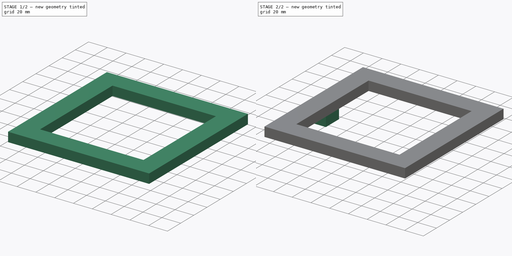
[diagram: build sequence overview — one tinted view per stage of 2, left to right]
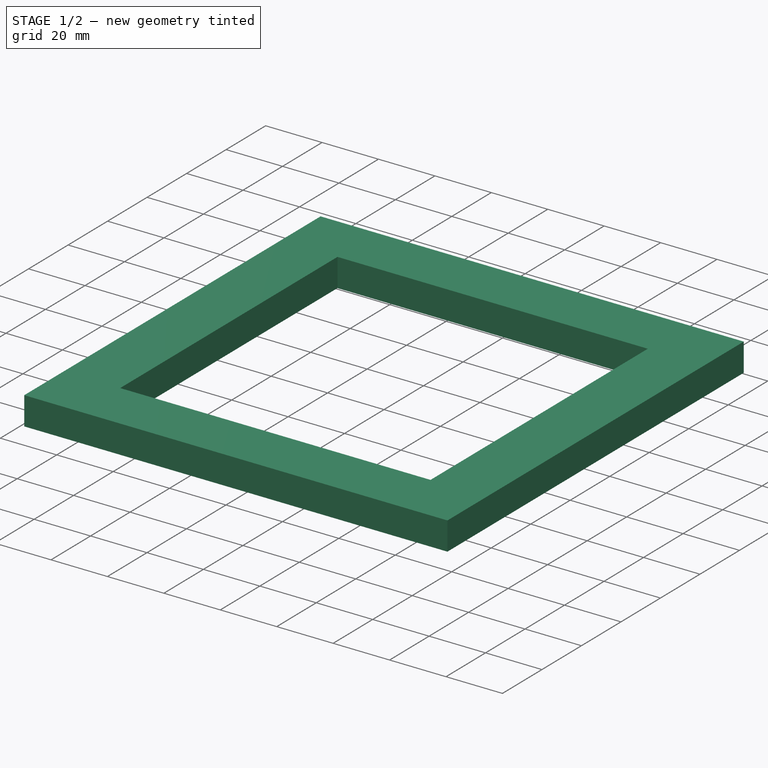
[diagram: stage 1 of 2 — iso view after this stage's code; geometry added in this stage tinted green]
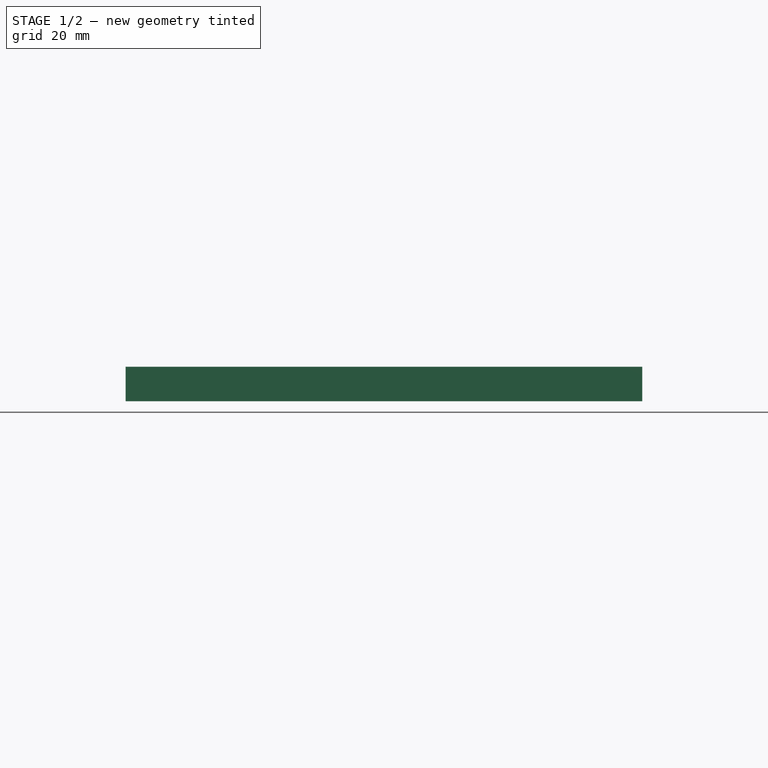
[diagram: stage 1 of 2 — front view after this stage's code; geometry added in this stage tinted green]
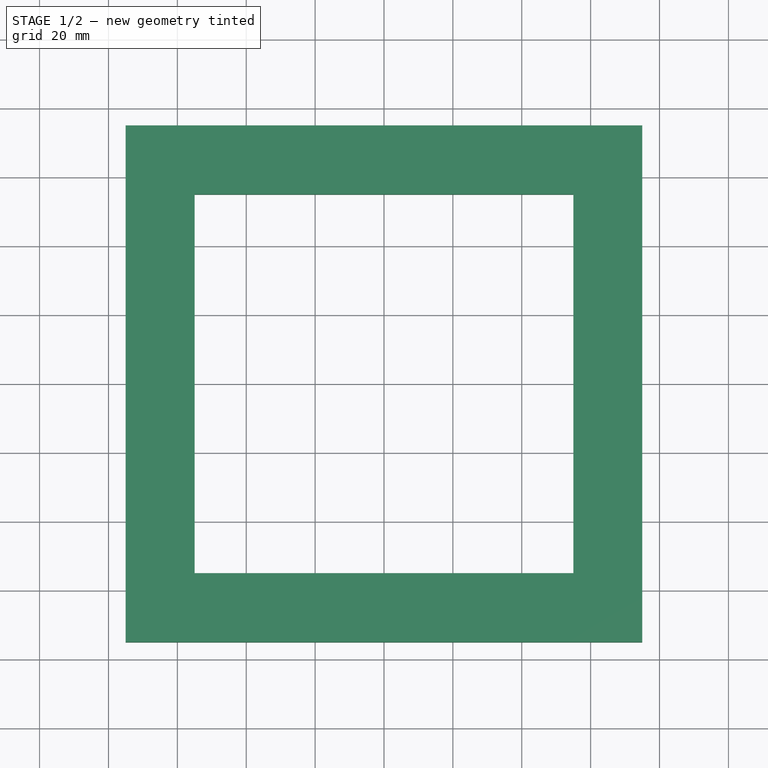
[diagram: stage 1 of 2 — top view after this stage's code; geometry added in this stage tinted green]
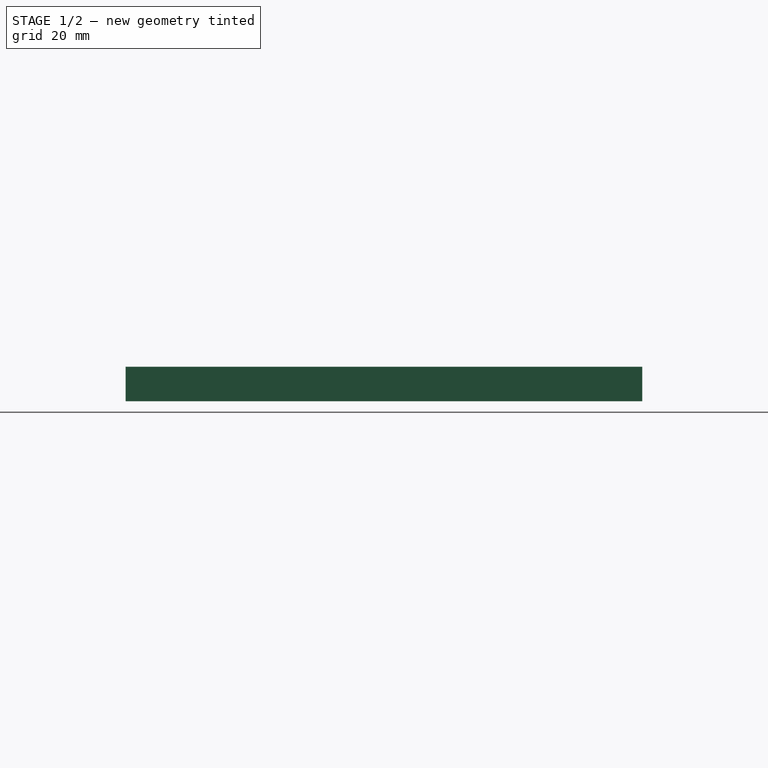
[diagram: stage 1 of 2 — right view after this stage's code; geometry added in this stage tinted green]
FCSTD DOCUMENT  (FreeCAD 0.15R4671 (Git))
Label: frame
License: All rights reserved
LicenseURL: http://en.wikipedia.org/wiki/All_rights_reserved
objects: Sketcher::SketchObject×4, PartDesign::Pad×2
note: 8 computed .brp shape members not serialized (recipe doc carries the construction recipe); baked Part::Feature solids carry a one-line shape summary decoded from their .brp

FEATURE [Sketcher::SketchObject] Sketch
  sketch-geometry (22):
    g0: GeomPoint [constr] X=-75 Y=-75 Z=0
    g1: GeomPoint [constr] X=75 Y=-75 Z=0
    g2: GeomPoint [constr] X=-75 Y=75 Z=0
    g3: GeomPoint [constr] X=75 Y=75 Z=0
    g4: LineSegment StartX=-75 StartY=-75 StartZ=0 EndX=-75 EndY=75 EndZ=0
    g5: LineSegment StartX=-75 StartY=75 StartZ=0 EndX=75 EndY=75 EndZ=0
    g6: LineSegment StartX=75 StartY=75 StartZ=0 EndX=75 EndY=-75 EndZ=0
    g7: LineSegment StartX=75 StartY=-75 StartZ=0 EndX=-75 EndY=-75 EndZ=0
    g8: GeomPoint [constr] X=-55 Y=55 Z=0
    g9: GeomPoint [constr] X=55 Y=55 Z=0
    g10: GeomPoint [constr] X=-55 Y=-55 Z=0
    g11: GeomPoint [constr] X=55 Y=-55 Z=0
    g12: LineSegment StartX=-55 StartY=55 StartZ=0 EndX=55 EndY=55 EndZ=0
    g13: LineSegment StartX=55 StartY=55 StartZ=0 EndX=55 EndY=-55 EndZ=0
    g14: LineSegment StartX=55 StartY=-55 StartZ=0 EndX=-55 EndY=-55 EndZ=0
    g15: LineSegment StartX=-55 StartY=-55 StartZ=0 EndX=-55 EndY=55 EndZ=0
    g16: GeomPoint [constr] X=-75 Y=10 Z=0
    g17: GeomPoint [constr] X=-55 Y=10 Z=0
    g18: GeomPoint [constr] X=-75 Y=-10 Z=0
    g19: GeomPoint [constr] X=-55 Y=-10 Z=0
    g20: LineSegment StartX=-75 StartY=10 StartZ=0 EndX=-55 EndY=10 EndZ=0
    g21: LineSegment StartX=-75 StartY=-10 StartZ=0 EndX=-55 EndY=-10 EndZ=0
  constraints (31):
    c: Coincident(g4,g0)
    c: Coincident(g4,g2)
    c: Vertical(g4)
    c: Coincident(g5,g2)
    c: Coincident(g5,g3)
    c: Horizontal(g5)
    c: Coincident(g6,g3)
    c: Coincident(g6,g1)
    c: Vertical(g6)
    c: Coincident(g7,g0)
    c: Horizontal(g7)
    c: Coincident(g12,g13)
    c: Coincident(g13,g14)
    c: Coincident(g14,g15)
    c: Coincident(g15,g12)
    c: Horizontal(g12)
    c: Horizontal(g14)
    c: Vertical(g13)
    c: Vertical(g15)
    c: Coincident(g12,g8)
    c: Coincident(g13,g11)
    c: PointOnObject(g16,g4)
    c: PointOnObject(g17,g15)
    c: PointOnObject(g18,g4)
    c: PointOnObject(g19,g15)
    c: Coincident(g20,g16)
    c: Coincident(g20,g17)
    c: Horizontal(g20)
    c: Coincident(g21,g18)
    c: Coincident(g21,g19)
    c: Horizontal(g21)
FEATURE [PartDesign::Pad] Pad
  Length = 10
  Length2 = 100
  Sketch = -> Sketch
  Type = 0
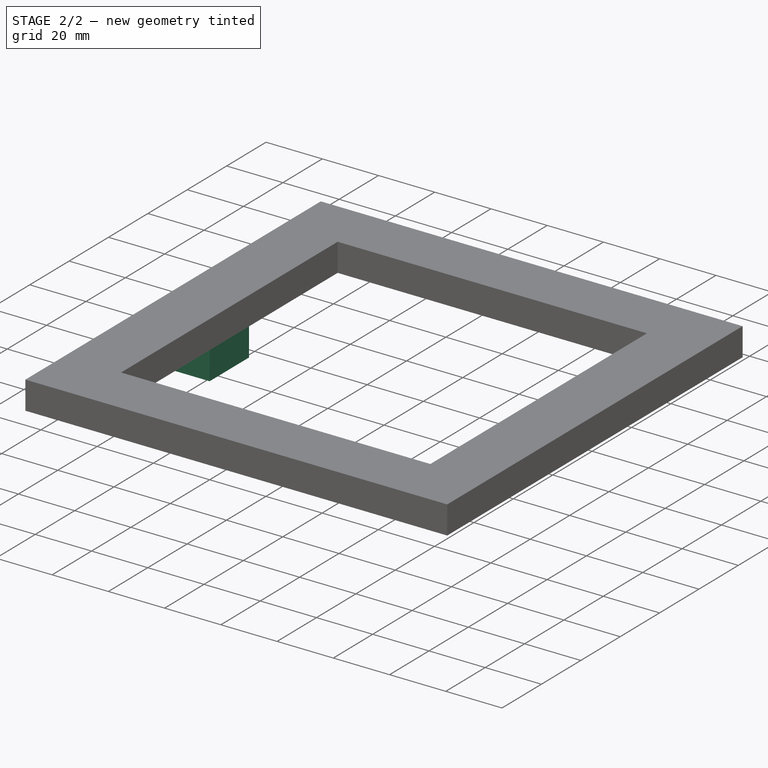
[diagram: stage 2 of 2 — iso view after this stage's code; geometry added in this stage tinted green]
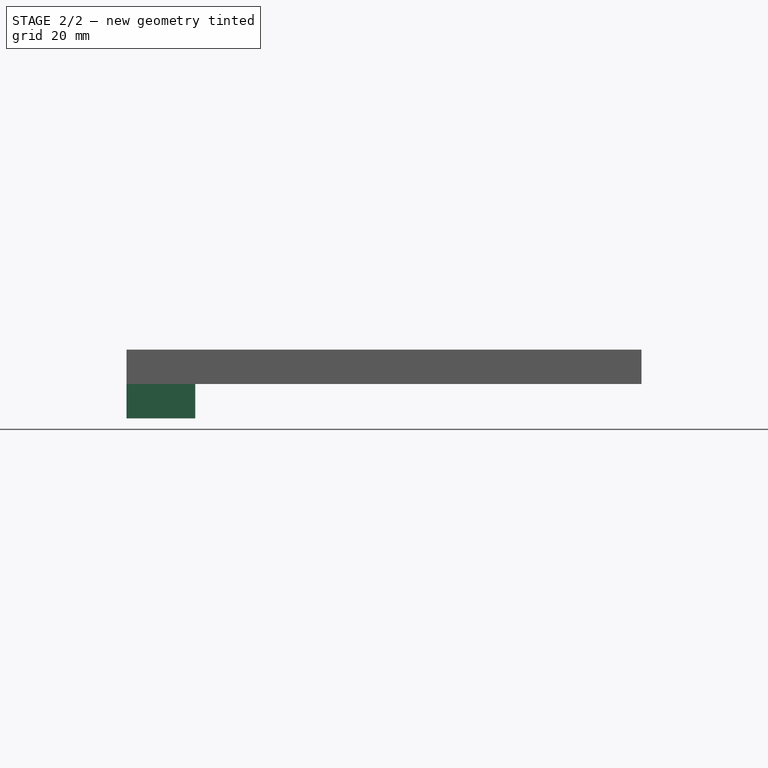
[diagram: stage 2 of 2 — front view after this stage's code; geometry added in this stage tinted green]
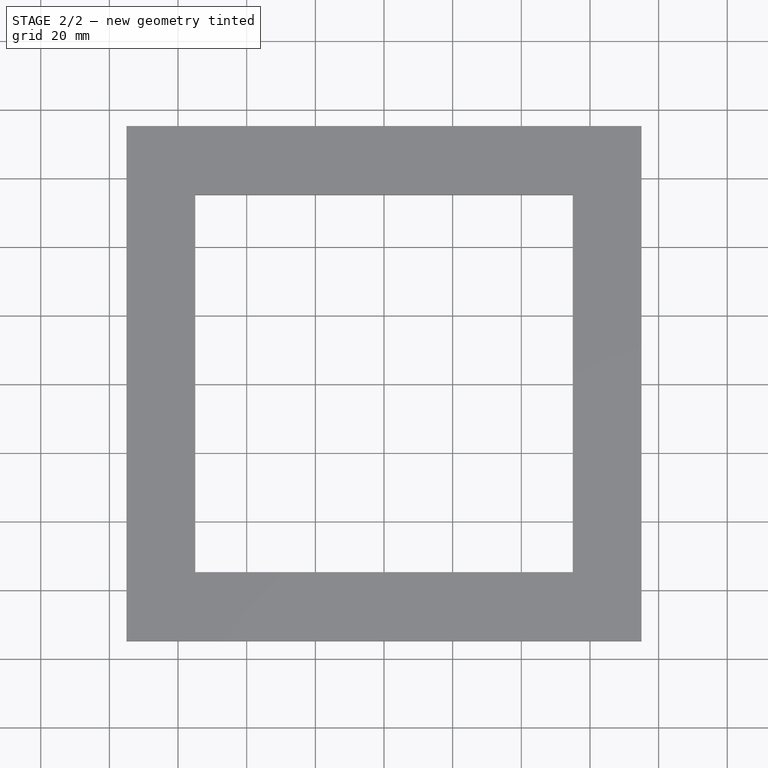
[diagram: stage 2 of 2 — top view after this stage's code; geometry added in this stage tinted green]
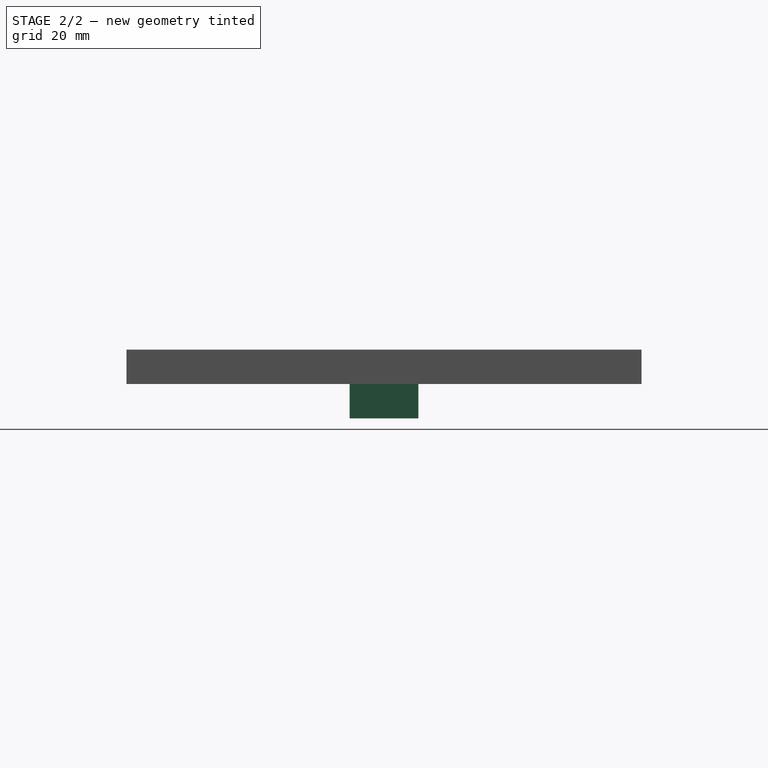
[diagram: stage 2 of 2 — right view after this stage's code; geometry added in this stage tinted green]
FEATURE [Sketcher::SketchObject] Sketch001
  sketch-geometry (8):
    g0: GeomPoint [constr] X=-75 Y=10 Z=0
    g1: GeomPoint [constr] X=-55 Y=10 Z=0
    g2: GeomPoint [constr] X=-75 Y=-10 Z=0
    g3: GeomPoint [constr] X=-55 Y=-10 Z=0
    g4: LineSegment StartX=-75 StartY=10 StartZ=0 EndX=-55 EndY=10 EndZ=0
    g5: LineSegment StartX=-55 StartY=10 StartZ=0 EndX=-55 EndY=-10 EndZ=0
    g6: LineSegment StartX=-55 StartY=-10 StartZ=0 EndX=-75 EndY=-10 EndZ=0
    g7: LineSegment StartX=-75 StartY=-10 StartZ=0 EndX=-75 EndY=10 EndZ=0
  constraints (10):
    c: Coincident(g4,g5)
    c: Coincident(g5,g6)
    c: Coincident(g6,g7)
    c: Coincident(g7,g4)
    c: Horizontal(g4)
    c: Horizontal(g6)
    c: Vertical(g5)
    c: Vertical(g7)
    c: Coincident(g4,g0)
    c: Coincident(g5,g3)
FEATURE [Sketcher::SketchObject] Sketch002
  Placement = pos=(0,0,10) rot=(0,0,1;0rad)
  Support = -> Pad [Face10]
FEATURE [Sketcher::SketchObject] Sketch003
  Placement = pos=(0,0,0) rot=(1,0,0;3.14159rad)
  Support = -> Pad [Face9]
  sketch-geometry (4):
    g0: LineSegment StartX=-75 StartY=10 StartZ=0 EndX=-55 EndY=10 EndZ=0
    g1: LineSegment StartX=-55 StartY=10 StartZ=0 EndX=-55 EndY=-10 EndZ=0
    g2: LineSegment StartX=-55 StartY=-10 StartZ=0 EndX=-75 EndY=-10 EndZ=0
    g3: LineSegment StartX=-75 StartY=-10 StartZ=0 EndX=-75 EndY=10 EndZ=0
  constraints (8):
    c: Coincident(g0,g1)
    c: Coincident(g1,g2)
    c: Coincident(g2,g3)
    c: Coincident(g3,g0)
    c: Horizontal(g0)
    c: Horizontal(g2)
    c: Vertical(g1)
    c: Vertical(g3)
FEATURE [PartDesign::Pad] Pad001
  Length = 10
  Length2 = 100
  Sketch = -> Sketch003
  Type = 0
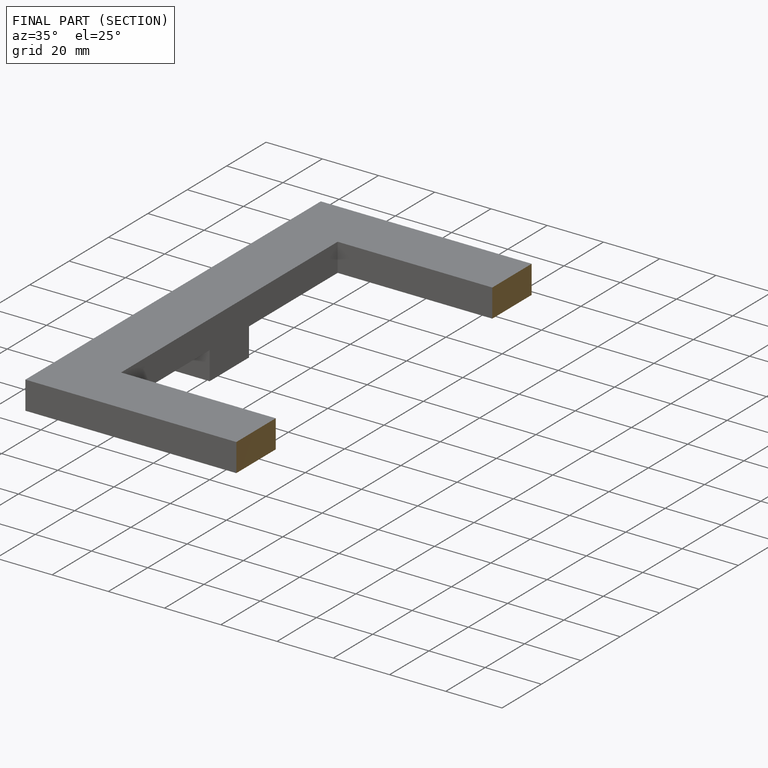
[diagram: finished part — half-section view (interior)]
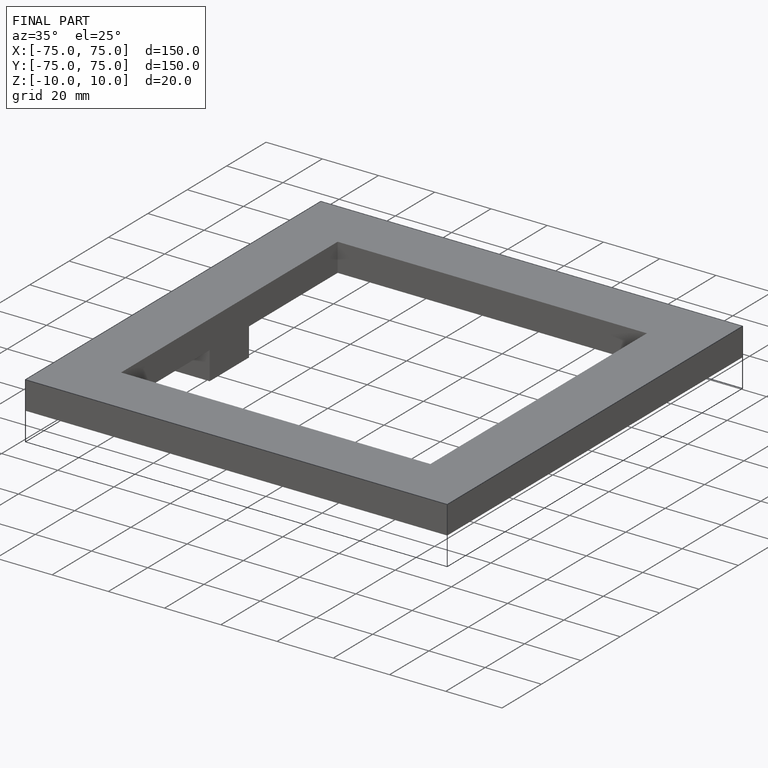
[diagram: finished part — iso view with bounding-box wireframe]
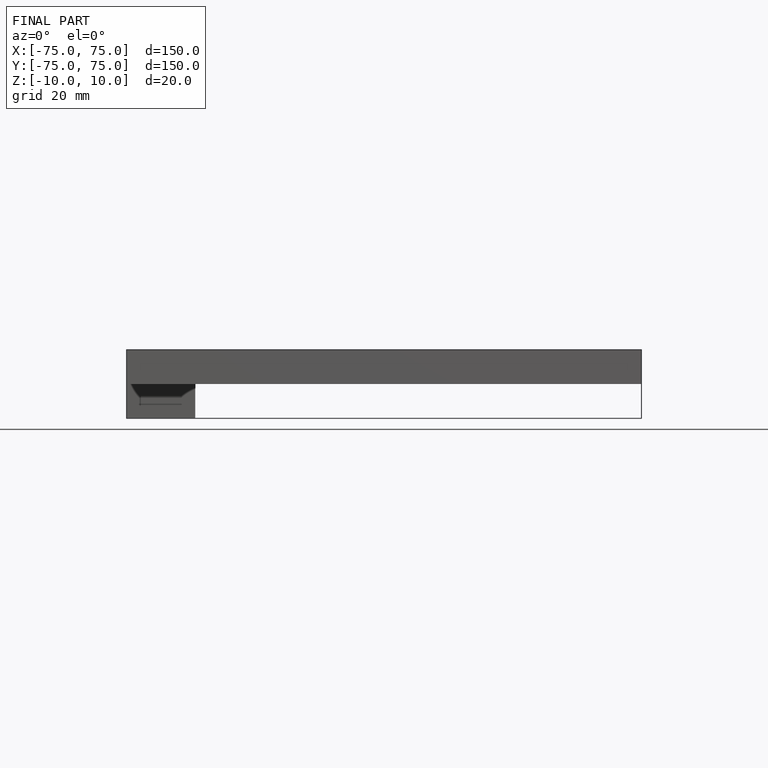
[diagram: finished part — front view with bounding-box wireframe]
